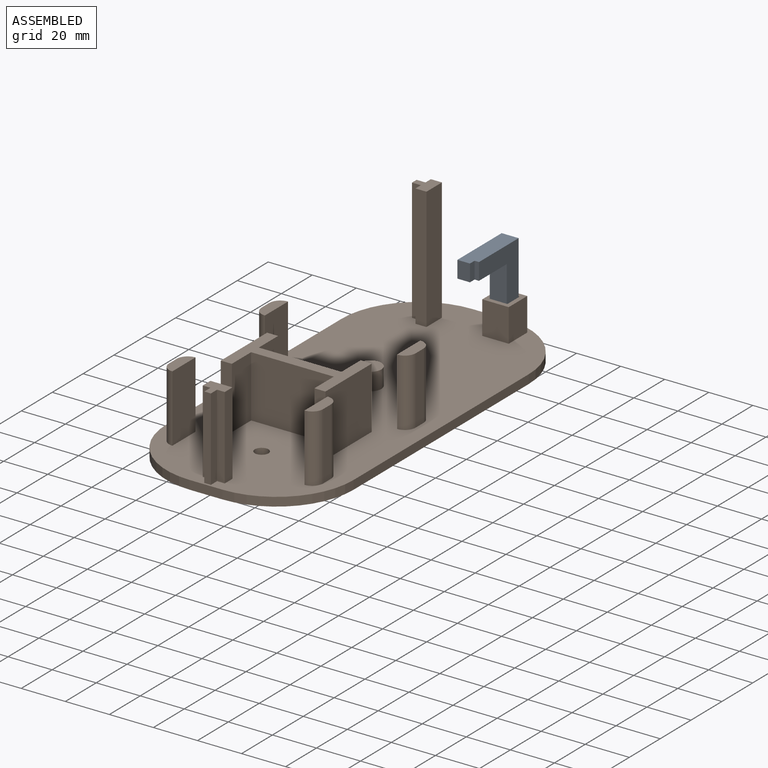
[diagram: assembled view]
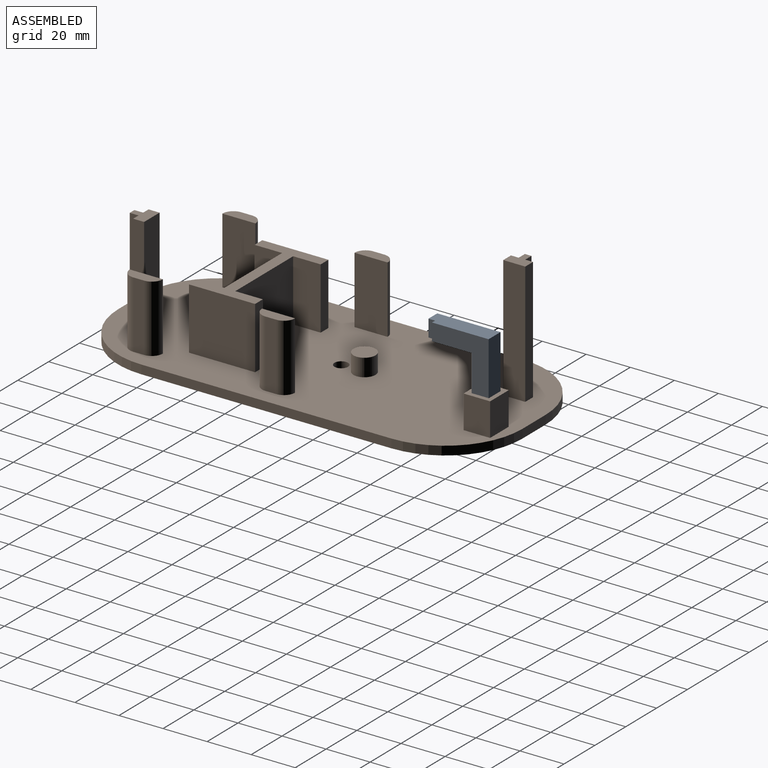
[diagram: assembled view, second angle]
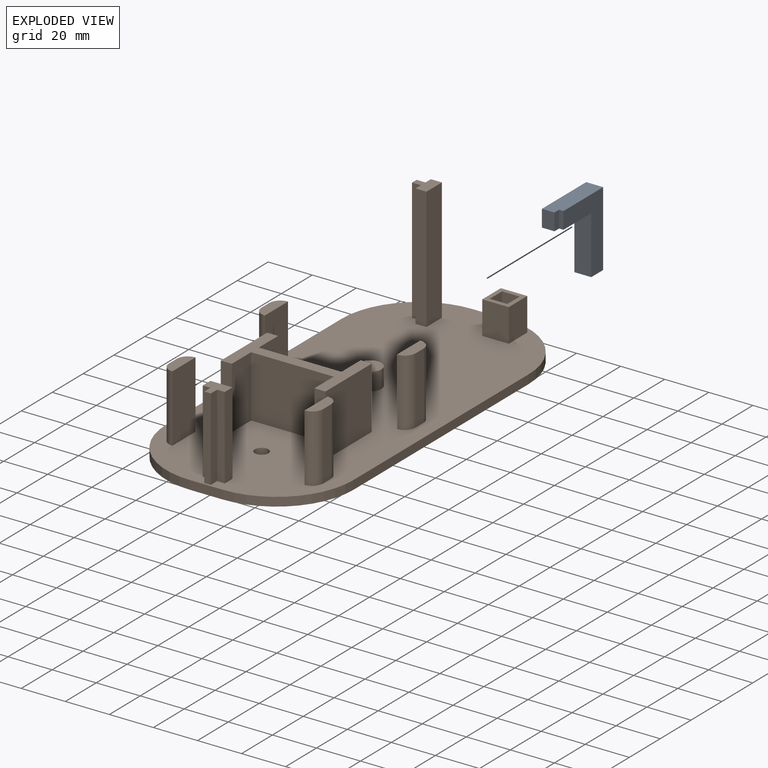
[diagram: exploded view]
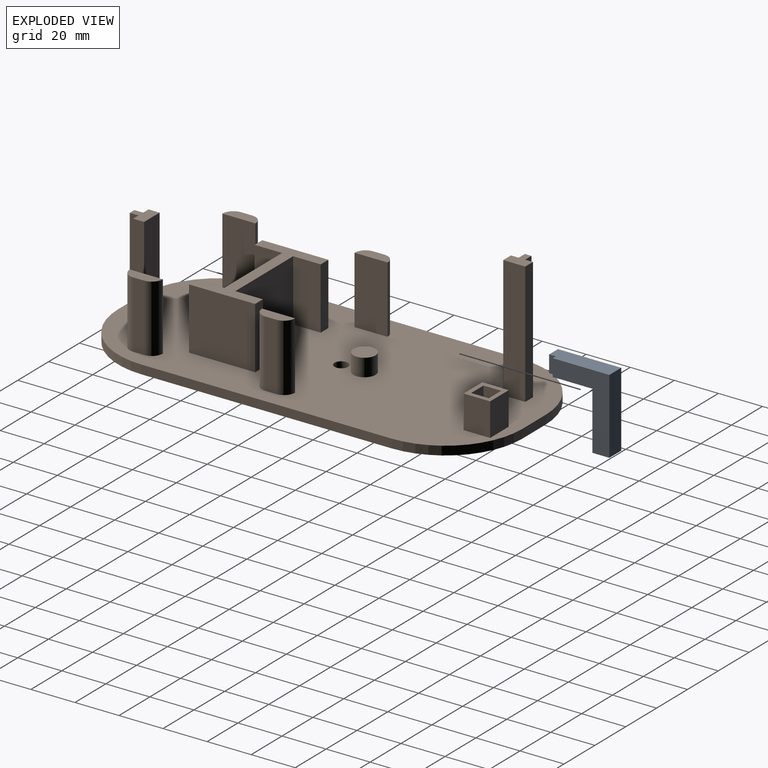
[diagram: exploded view, second angle]
ASSEMBLY  parts=2 mates=3
PART A: 10 faces, bbox 28.7x34x7.7 mm
  f0: plane 28.7x7.7mm, normal (0,1,0), area 215mm2, adj f1,f5,f6,f7,f8,f9
  f1: plane 34x7.7mm, normal (-1,0,0), area 261.8mm2, adj f0,f2,f6,f7
  f2: plane 7.7x7.7mm, normal (0,-1,0), area 59.3mm2, adj f1,f3,f6,f7
  f3: plane 26.3x7.7mm, normal (1,0,0), area 202.5mm2, adj f2,f4,f6,f7
  f4: plane 21x7.7mm, normal (0,-1,0), area 155.7mm2, adj f3,f5,f6,f7,f8,f9
  f5: plane 7.7x5.7mm, normal (1,0,0), area 43.9mm2, adj f0,f4,f6,f8
  f6: plane 34x28.7mm, normal (0,0,1), area 423.5mm2, adj f0,f1,f2,f3,f4,f5
  f7: plane 34x25.7mm, normal (0,0,-1), area 400.4mm2, adj f0,f1,f2,f3,f4,f9
  f8: plane 7.7x3mm, normal (0,0,-1), area 23.1mm2, adj f0,f4,f5,f9
  f9: plane 7.7x2mm, normal (1,0,0), area 15.4mm2, adj f0,f4,f7,f8
PART B: 75 faces, bbox 85x183.5x59.5 mm
  f0: plane 12x12mm, normal (0,0,1), area 80mm2, adj f48,f49,f50,f51,f52,f53,f54,f55
  f1: plane 183.5x85mm, normal (0,0,1), area 13394.5mm2, adj f2,f3,f4,f5,f6,f7,f8,f9
  f2: plane 113.5x4mm, normal (1,0,0), area 454mm2, adj f1,f43,f71,f73
  f3: plane 15x4mm, normal (0,1,0), area 60mm2, adj f1,f43,f73,f74
  f4: plane 113.5x4mm, normal (-1,0,0), area 454mm2, adj f1,f43,f72,f74
  f5: plane 28x5mm, normal (0,1,0), area 140mm2, adj f1,f6,f16,f17
  f6: plane 30x28mm, normal (-1,0,0), area 840mm2, adj f1,f5,f7,f17
  f7: plane 28x5mm, normal (0,-1,0), area 140mm2, adj f1,f6,f8,f17
  f8: plane 28x12.5mm, normal (1,0,0), area 350mm2, adj f1,f7,f9,f17
  f9: plane 37.5x28mm, normal (0,-1,0), area 1050mm2, adj f1,f8,f10,f17
  f10: plane 28x12.5mm, normal (-1,0,0), area 350mm2, adj f1,f9,f11,f17
  f11: plane 28x5mm, normal (0,-1,0), area 140mm2, adj f1,f10,f12,f17
  f12: plane 30x28mm, normal (1,0,0), area 840mm2, adj f1,f11,f13,f17
  f13: plane 28x5mm, normal (0,1,0), area 140mm2, adj f1,f12,f14,f17
  f14: plane 28x12.5mm, normal (-1,0,0), area 350mm2, adj f1,f13,f15,f17
  f15: plane 37.5x28mm, normal (0,1,0), area 1050mm2, adj f1,f14,f16,f17
  f16: plane 28x12.5mm, normal (1,0,0), area 350mm2, adj f1,f5,f15,f17
  f17: plane 47.5x30mm, normal (0,0,1), area 487.5mm2, adj f5,f6,f7,f8,f9,f10,f11,f12
  f18: plane 37.5x4mm, normal (1,0,0), area 150mm2, adj f1,f19,f25,f26
  f19: plane 37.5x3.5mm, normal (0,-1,0), area 131.2mm2, adj f1,f18,f20,f26
  f20: plane 37.5x5mm, normal (1,0,0), area 187.5mm2, adj f1,f19,f21,f26
  f21: plane 37.5x10mm, normal (0,1,0), area 375mm2, adj f1,f20,f22,f26
  f22: plane 37.5x5mm, normal (-1,0,0), area 187.5mm2, adj f1,f21,f23,f26
  f23: plane 37.5x3.5mm, normal (0,-1,0), area 131.2mm2, adj f1,f22,f24,f26
  f24: plane 37.5x4mm, normal (-1,0,0), area 150mm2, adj f1,f23,f25,f26
  f25: plane 37.5x3mm, normal (0,-1,0), area 112.5mm2, adj f1,f18,f24,f26
  f26: plane 10x9mm, normal (0,0,1), area 62mm2, adj f18,f19,f20,f21,f22,f23,f24,f25
  f27: plane 55.5x4mm, normal (0,-1,0), area 222mm2, adj f1,f28,f34,f35
  f28: plane 55.5x3.5mm, normal (-1,0,0), area 194.2mm2, adj f1,f27,f29,f35
  f29: plane 55.5x5mm, normal (0,-1,0), area 277.5mm2, adj f1,f28,f30,f35
  f30: plane 55.5x10mm, normal (1,0,0), area 555mm2, adj f1,f29,f31,f35
  f31: plane 55.5x5mm, normal (0,1,0), area 277.5mm2, adj f1,f30,f32,f35
  f32: plane 55.5x3.5mm, normal (-1,0,0), area 194.3mm2, adj f1,f31,f33,f35
  f33: plane 55.5x4mm, normal (0,1,0), area 222mm2, adj f1,f32,f34,f35
  f34: plane 55.5x3mm, normal (-1,0,0), area 166.5mm2, adj f1,f27,f33,f35
  f35: plane 10x9mm, normal (0,0,1), area 62mm2, adj f27,f28,f29,f30,f31,f32,f33,f34
  f36: plane 30.5x5mm, normal (-1,0,0), area 152.5mm2, adj f1,f38,f69,f70
  f37: plane 30.5x15mm, normal (1,0,0), area 457.5mm2, adj f1,f38,f69,f70
  f38: plane 15x5mm, normal (0,0,1), area 64.3mm2, adj f36,f37,f69,f70
  f39: plane 30.5x15mm, normal (-1,0,0), area 457.5mm2, adj f1,f41,f67,f68
  f40: plane 30.5x5mm, normal (1,0,0), area 152.5mm2, adj f1,f41,f67,f68
  f41: plane 15x5mm, normal (0,0,1), area 64.3mm2, adj f39,f40,f67,f68
  f42: plane 15x4mm, normal (0,-1,0), area 60mm2, adj f1,f43,f71,f72
  f43: plane 183.5x85mm, normal (0,0,-1), area 14485.6mm2, adj f2,f3,f4,f42,f44,f45,f71,f72
  f44: cylinder r=3.1mm len=6.2mm, axis (0,0,1), area 77.9mm2, adj f1,f43
  f45: cylinder r=3.1mm len=6.2mm, axis (0,0,1), area 77.9mm2, adj f1,f43
  f46: cylinder r=5mm len=10mm, axis (0,0,-1), area 251.3mm2, adj f1,f47
  f47: plane 10x10mm, normal (0,0,1), area 78.5mm2, adj f46
  f48: plane 15x12mm, normal (0,-1,0), area 180mm2, adj f0,f1,f49,f51
  f49: plane 15x12mm, normal (1,0,0), area 180mm2, adj f0,f1,f48,f50
  f50: plane 15x12mm, normal (0,1,0), area 180mm2, adj f0,f1,f49,f51
  f51: plane 15x12mm, normal (-1,0,0), area 180mm2, adj f0,f1,f48,f50
  f52: plane 10x8mm, normal (-1,0,0), area 80mm2, adj f0,f53,f55,f56
  f53: plane 10x8mm, normal (0,-1,0), area 80mm2, adj f0,f52,f54,f56
  f54: plane 10x8mm, normal (1,0,0), area 80mm2, adj f0,f53,f55,f56
  f55: plane 10x8mm, normal (0,1,0), area 80mm2, adj f0,f52,f54,f56
  f56: plane 8x8mm, normal (0,0,1), area 64mm2, adj f52,f53,f54,f55
  f57: plane 30.5x5mm, normal (-1,0,0), area 152.5mm2, adj f1,f59,f65,f66
  f58: plane 30.5x15mm, normal (1,0,0), area 457.5mm2, adj f1,f59,f65,f66
  f59: plane 15x5mm, normal (0,0,1), area 64.3mm2, adj f57,f58,f65,f66
  f60: plane 30.5x15mm, normal (-1,0,0), area 457.5mm2, adj f1,f62,f63,f64
  f61: plane 30.5x5mm, normal (1,0,0), area 152.5mm2, adj f1,f62,f63,f64
  f62: plane 15x5mm, normal (0,0,1), area 64.3mm2, adj f60,f61,f63,f64
  f63: cylinder r=5mm len=30.5mm, axis (0,0,1), area 239.5mm2, adj f1,f60,f61,f62
  f64: cylinder r=5mm len=30.5mm, axis (0,0,-1), area 239.5mm2, adj f1,f60,f61,f62
  f65: cylinder r=5mm len=30.5mm, axis (0,0,-1), area 239.5mm2, adj f1,f57,f58,f59
  f66: cylinder r=5mm len=30.5mm, axis (0,0,1), area 239.5mm2, adj f1,f57,f58,f59
  f67: cylinder r=5mm len=30.5mm, axis (0,0,1), area 239.5mm2, adj f1,f39,f40,f41
  f68: cylinder r=5mm len=30.5mm, axis (0,0,-1), area 239.5mm2, adj f1,f39,f40,f41
  f69: cylinder r=5mm len=30.5mm, axis (0,0,-1), area 239.5mm2, adj f1,f36,f37,f38
  f70: cylinder r=5mm len=30.5mm, axis (0,0,1), area 239.5mm2, adj f1,f36,f37,f38
  f71: cylinder r=35mm len=35mm, axis (0,0,-1), area 219.9mm2, adj f1,f2,f42,f43
  f72: cylinder r=35mm len=35mm, axis (0,0,1), area 219.9mm2, adj f1,f4,f42,f43
  f73: cylinder r=35mm len=35mm, axis (0,0,1), area 219.9mm2, adj f1,f2,f3,f43
  f74: cylinder r=35mm len=35mm, axis (0,0,-1), area 219.9mm2, adj f1,f3,f4,f43
PLACE A rot(axis=(0.58,-0.58,-0.58),120deg) t=(31.08,139.66,-2.17)mm
PLACE B t=(12.38,7.06,-26.17)mm
MATE planar A.f2 <-> B.f56  axis (0,0,-1) through (27.23,85.66,-19.17)mm
MATE planar A.f3 <-> B.f55  axis (0,-1,0) through (27.23,81.81,-6.02)mm
MATE planar A.f6 <-> B.f54  axis (-1,0,0) through (23.38,80.18,2.85)mm
